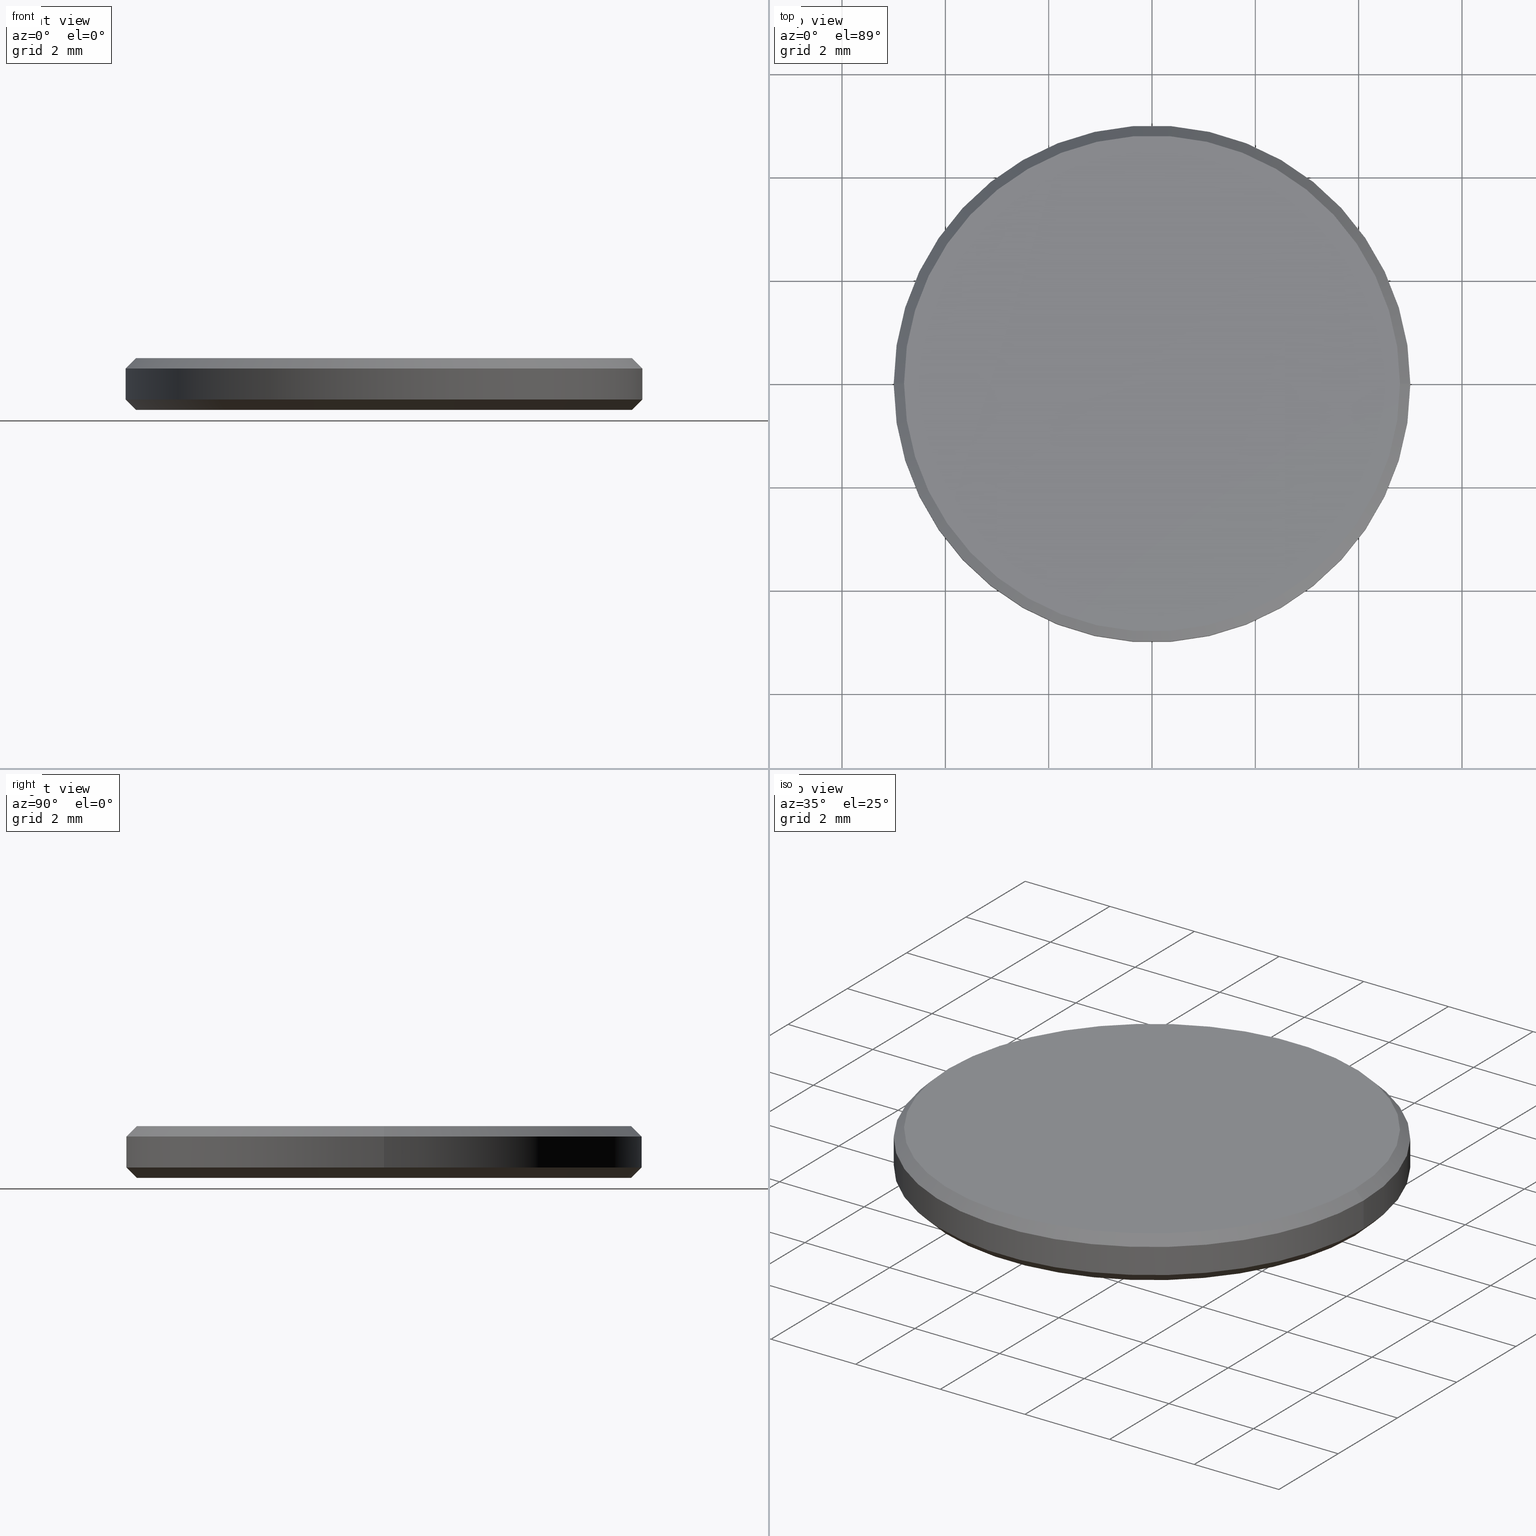
[diagram: canonical four-view strip — front | top / right | iso, engineering-drawing reading convention]
A machine part, canonical four-view strip (front | top / right | iso — engineering-drawing reading convention). The complete STEP part file that produces these views, byte-faithful:
ISO-10303-21;
HEADER;
FILE_DESCRIPTION (( 'STEP AP214' ),
    '1' );
FILE_NAME ('GNIF-320-7360-D10.STEP',
    '2024-07-19T14:46:29',
    ( '' ),
    ( '' ),
    'SwSTEP 2.0',
    'SolidWorks 2022',
    '' );
FILE_SCHEMA (( 'AUTOMOTIVE_DESIGN' ));
ENDSEC;

DATA;
#1 = FACE_OUTER_BOUND ( 'NONE', #208, .T. ) ;
#2 = DIRECTION ( 'NONE',  ( 0.000000000000000000, 0.000000000000000000, -1.000000000000000000 ) ) ;
#3 = FACE_OUTER_BOUND ( 'NONE', #76, .T. ) ;
#4 = AXIS2_PLACEMENT_3D ( 'NONE', #57, #190, #123 ) ;
#5 = APPLICATION_PROTOCOL_DEFINITION ( 'draft international standard', 'automotive_design', 1998, #34 ) ;
#6 = CIRCLE ( 'NONE', #172, 4.799999999999999822 ) ;
#7 = EDGE_LOOP ( 'NONE', ( #109, #98, #71, #81 ) ) ;
#8 = FILL_AREA_STYLE_COLOUR ( '', #68 ) ;
#9 = ADVANCED_FACE ( 'NONE', ( #228 ), #136, .T. ) ;
#10 = DIRECTION ( 'NONE',  ( -0.000000000000000000, -0.000000000000000000, 1.000000000000000000 ) ) ;
#11 = UNCERTAINTY_MEASURE_WITH_UNIT (LENGTH_MEASURE( 1.000000000000000082E-05 ), #157, 'distance_accuracy_value', 'NONE');
#12 = DIRECTION ( 'NONE',  ( 1.000000000000000000, 0.000000000000000000, 0.000000000000000000 ) ) ;
#13 = DIRECTION ( 'NONE',  ( 0.7071067811865490160, 0.000000000000000000, 0.7071067811865459074 ) ) ;
#14 = APPLICATION_CONTEXT ( 'automotive_design' ) ;
#15 = LINE ( 'NONE', #90, #89 ) ;
#16 = PRODUCT_DEFINITION_FORMATION_WITH_SPECIFIED_SOURCE ( '�κ�', '', #163, .NOT_KNOWN. ) ;
#17 = EDGE_CURVE ( 'NONE', #92, #43, #162, .T. ) ;
#18 =( GEOMETRIC_REPRESENTATION_CONTEXT ( 3 ) GLOBAL_UNCERTAINTY_ASSIGNED_CONTEXT ( ( #33 ) ) GLOBAL_UNIT_ASSIGNED_CONTEXT ( ( #132, #100, #223 ) ) REPRESENTATION_CONTEXT ( 'NONE', 'WORKASPACE' ) );
#19 = ORIENTED_EDGE ( 'NONE', *, *, #73, .F. ) ;
#20 = AXIS2_PLACEMENT_3D ( 'NONE', #196, #199, #230 ) ;
#21 = CYLINDRICAL_SURFACE ( 'NONE', #79, 5.000000000000000000 ) ;
#22 = FILL_AREA_STYLE ('',( #8 ) ) ;
#23 = EDGE_LOOP ( 'NONE', ( #160, #169, #96, #62 ) ) ;
#24 = DIRECTION ( 'NONE',  ( 1.000000000000000000, 0.000000000000000000, 0.000000000000000000 ) ) ;
#25 = EDGE_LOOP ( 'NONE', ( #150, #193, #226, #40 ) ) ;
#26 = CARTESIAN_POINT ( 'NONE',  ( 0.000000000000000000, 0.000000000000000000, 0.000000000000000000 ) ) ;
#27 = ADVANCED_FACE ( 'NONE', ( #1 ), #176, .T. ) ;
#28 = AXIS2_PLACEMENT_3D ( 'NONE', #152, #227, #58 ) ;
#29 = DIRECTION ( 'NONE',  ( -0.000000000000000000, -0.000000000000000000, 1.000000000000000000 ) ) ;
#30 = DIRECTION ( 'NONE',  ( 0.000000000000000000, 0.000000000000000000, -1.000000000000000000 ) ) ;
#31 = AXIS2_PLACEMENT_3D ( 'NONE', #175, #10, #229 ) ;
#32 = PLANE ( 'NONE',  #20 ) ;
#33 = UNCERTAINTY_MEASURE_WITH_UNIT (LENGTH_MEASURE( 1.000000000000000082E-05 ), #132, 'distance_accuracy_value', 'NONE');
#34 = APPLICATION_CONTEXT ( 'automotive_design' ) ;
#35 = PRESENTATION_STYLE_ASSIGNMENT (( #216 ) ) ;
#36 = DIRECTION ( 'NONE',  ( -0.7071067811865490160, 8.659560562354950115E-17, 0.7071067811865459074 ) ) ;
#37 = CIRCLE ( 'NONE', #45, 4.800000000000002487 ) ;
#38 = ORIENTED_EDGE ( 'NONE', *, *, #39, .F. ) ;
#39 = EDGE_CURVE ( 'NONE', #91, #151, #164, .T. ) ;
#40 = ORIENTED_EDGE ( 'NONE', *, *, #181, .F. ) ;
#41 = SURFACE_SIDE_STYLE ('',( #173 ) ) ;
#42 = EDGE_CURVE ( 'NONE', #43, #92, #72, .T. ) ;
#43 = VERTEX_POINT ( 'NONE', #48 ) ;
#44 = DIRECTION ( 'NONE',  ( -0.000000000000000000, -0.000000000000000000, -1.000000000000000000 ) ) ;
#45 = AXIS2_PLACEMENT_3D ( 'NONE', #121, #124, #46 ) ;
#46 = DIRECTION ( 'NONE',  ( 1.000000000000000000, 0.000000000000000000, 0.000000000000000000 ) ) ;
#47 = DIRECTION ( 'NONE',  ( -0.000000000000000000, -0.000000000000000000, 1.000000000000000000 ) ) ;
#48 = CARTESIAN_POINT ( 'NONE',  ( -5.000000000000000000, 0.000000000000000000, 0.1999999999999996503 ) ) ;
#49 = AXIS2_PLACEMENT_3D ( 'NONE', #213, #120, #179 ) ;
#50 = DIRECTION ( 'NONE',  ( 0.7071067811865460184, 8.659560562354913137E-17, -0.7071067811865489050 ) ) ;
#51 = CARTESIAN_POINT ( 'NONE',  ( 5.000000000000000000, 0.000000000000000000, 0.1999999999999996503 ) ) ;
#52 = ADVANCED_FACE ( 'NONE', ( #88 ), #144, .T. ) ;
#53 = EDGE_LOOP ( 'NONE', ( #202, #99 ) ) ;
#54 = PRESENTATION_LAYER_ASSIGNMENT (  '', '', ( #158 ) ) ;
#55 = ADVANCED_FACE ( 'NONE', ( #236 ), #235, .T. ) ;
#56 = SURFACE_STYLE_USAGE ( .BOTH. , #41 ) ;
#57 = CARTESIAN_POINT ( 'NONE',  ( 0.000000000000000000, 0.000000000000000000, 0.1999999999999996503 ) ) ;
#58 = DIRECTION ( 'NONE',  ( 1.000000000000000000, 0.000000000000000000, -0.000000000000000000 ) ) ;
#59 = CIRCLE ( 'NONE', #74, 5.000000000000000000 ) ;
#60 = DIRECTION ( 'NONE',  ( -0.000000000000000000, -0.000000000000000000, -1.000000000000000000 ) ) ;
#61 = ADVANCED_BREP_SHAPE_REPRESENTATION ( 'GNIF-320-7360-D10', ( #184, #221 ), #18 ) ;
#62 = ORIENTED_EDGE ( 'NONE', *, *, #204, .F. ) ;
#63 = ORIENTED_EDGE ( 'NONE', *, *, #220, .F. ) ;
#64 = LINE ( 'NONE', #51, #128 ) ;
#65 = LINE ( 'NONE', #104, #178 ) ;
#66 = FILL_AREA_STYLE_COLOUR ( '', #207 ) ;
#67 = CARTESIAN_POINT ( 'NONE',  ( 0.000000000000000000, 0.000000000000000000, 0.000000000000000000 ) ) ;
#68 = COLOUR_RGB ( '',1.000000000000000000, 1.000000000000000000, 1.000000000000000000 ) ;
#69 =( NAMED_UNIT ( * ) PLANE_ANGLE_UNIT ( ) SI_UNIT ( $, .RADIAN. ) );
#70 = AXIS2_PLACEMENT_3D ( 'NONE', #106, #30, #85 ) ;
#71 = ORIENTED_EDGE ( 'NONE', *, *, #17, .F. ) ;
#72 = CIRCLE ( 'NONE', #4, 5.000000000000000000 ) ;
#73 = EDGE_CURVE ( 'NONE', #189, #115, #37, .T. ) ;
#74 = AXIS2_PLACEMENT_3D ( 'NONE', #180, #137, #142 ) ;
#75 = DIRECTION ( 'NONE',  ( -1.000000000000000000, 0.000000000000000000, 0.000000000000000000 ) ) ;
#76 = EDGE_LOOP ( 'NONE', ( #127, #134 ) ) ;
#77 = PLANE ( 'NONE',  #28 ) ;
#78 = EDGE_CURVE ( 'NONE', #113, #92, #64, .T. ) ;
#79 = AXIS2_PLACEMENT_3D ( 'NONE', #168, #210, #97 ) ;
#80 = SHAPE_DEFINITION_REPRESENTATION ( #114, #61 ) ;
#81 = ORIENTED_EDGE ( 'NONE', *, *, #78, .F. ) ;
#82 = PRESENTATION_STYLE_ASSIGNMENT (( #56 ) ) ;
#83 = DIRECTION ( 'NONE',  ( 1.000000000000000000, 0.000000000000000000, 0.000000000000000000 ) ) ;
#84 = EDGE_CURVE ( 'NONE', #91, #92, #201, .T. ) ;
#85 = DIRECTION ( 'NONE',  ( -1.000000000000000000, 0.000000000000000000, 0.000000000000000000 ) ) ;
#86 = CARTESIAN_POINT ( 'NONE',  ( 0.000000000000000000, 0.000000000000000000, 0.1999999999999996503 ) ) ;
#87 = SURFACE_STYLE_FILL_AREA ( #231 ) ;
#88 = FACE_OUTER_BOUND ( 'NONE', #186, .T. ) ;
#89 = VECTOR ( 'NONE', #159, 1000.000000000000114 ) ;
#90 = CARTESIAN_POINT ( 'NONE',  ( -4.800000000000002487, 0.000000000000000000, 1.000000000000000000 ) ) ;
#91 = VERTEX_POINT ( 'NONE', #103 ) ;
#92 = VERTEX_POINT ( 'NONE', #156 ) ;
#93 = CONICAL_SURFACE ( 'NONE', #70, 4.800000000000002487, 0.7853981633974461696 ) ;
#94 = PRODUCT_CONTEXT ( 'NONE', #34, 'mechanical' ) ;
#95 = PRESENTATION_LAYER_ASSIGNMENT (  '', '', ( #183 ) ) ;
#96 = ORIENTED_EDGE ( 'NONE', *, *, #112, .F. ) ;
#97 = DIRECTION ( 'NONE',  ( -1.000000000000000000, 0.000000000000000000, 0.000000000000000000 ) ) ;
#98 = ORIENTED_EDGE ( 'NONE', *, *, #110, .T. ) ;
#99 = ORIENTED_EDGE ( 'NONE', *, *, #107, .T. ) ;
#100 =( NAMED_UNIT ( * ) PLANE_ANGLE_UNIT ( ) SI_UNIT ( $, .RADIAN. ) );
#101 = DIRECTION ( 'NONE',  ( 1.000000000000000000, 0.000000000000000000, 0.000000000000000000 ) ) ;
#102 = ADVANCED_FACE ( 'NONE', ( #153 ), #32, .F. ) ;
#103 = CARTESIAN_POINT ( 'NONE',  ( 5.000000000000000000, 6.123233995736766282E-16, 0.8000000000000012657 ) ) ;
#104 = CARTESIAN_POINT ( 'NONE',  ( -5.000000000000000000, 6.123233995736765296E-16, 0.1999999999999996503 ) ) ;
#105 = PRODUCT_DEFINITION_CONTEXT ( 'detailed design', #14, 'design' ) ;
#106 = CARTESIAN_POINT ( 'NONE',  ( 0.000000000000000000, 0.000000000000000000, 1.000000000000000000 ) ) ;
#107 = EDGE_CURVE ( 'NONE', #145, #113, #6, .T. ) ;
#108 =( NAMED_UNIT ( * ) SI_UNIT ( $, .STERADIAN. ) SOLID_ANGLE_UNIT ( ) );
#109 = ORIENTED_EDGE ( 'NONE', *, *, #107, .F. ) ;
#110 = EDGE_CURVE ( 'NONE', #145, #43, #65, .T. ) ;
#111 = ORIENTED_EDGE ( 'NONE', *, *, #42, .T. ) ;
#112 = EDGE_CURVE ( 'NONE', #151, #91, #59, .T. ) ;
#113 = VERTEX_POINT ( 'NONE', #217 ) ;
#114 = PRODUCT_DEFINITION_SHAPE ( 'NONE', 'NONE',  #240 ) ;
#115 = VERTEX_POINT ( 'NONE', #214 ) ;
#116 = DIRECTION ( 'NONE',  ( -1.000000000000000000, 0.000000000000000000, 0.000000000000000000 ) ) ;
#117 =( LENGTH_UNIT ( ) NAMED_UNIT ( * ) SI_UNIT ( .MILLI., .METRE. ) );
#118 = ADVANCED_FACE ( 'NONE', ( #211 ), #93, .T. ) ;
#119 = DIRECTION ( 'NONE',  ( -0.000000000000000000, -0.000000000000000000, -1.000000000000000000 ) ) ;
#120 = DIRECTION ( 'NONE',  ( 0.000000000000000000, 0.000000000000000000, 1.000000000000000000 ) ) ;
#121 = CARTESIAN_POINT ( 'NONE',  ( 0.000000000000000000, 0.000000000000000000, 1.000000000000000000 ) ) ;
#122 = VECTOR ( 'NONE', #155, 1000.000000000000000 ) ;
#123 = DIRECTION ( 'NONE',  ( 1.000000000000000000, 0.000000000000000000, 0.000000000000000000 ) ) ;
#124 = DIRECTION ( 'NONE',  ( 0.000000000000000000, 0.000000000000000000, 1.000000000000000000 ) ) ;
#125 = VECTOR ( 'NONE', #119, 1000.000000000000000 ) ;
#126 = ORIENTED_EDGE ( 'NONE', *, *, #204, .T. ) ;
#127 = ORIENTED_EDGE ( 'NONE', *, *, #73, .T. ) ;
#128 = VECTOR ( 'NONE', #13, 1000.000000000000000 ) ;
#129 = ORIENTED_EDGE ( 'NONE', *, *, #170, .F. ) ;
#130 = DIRECTION ( 'NONE',  ( 0.000000000000000000, 0.000000000000000000, 1.000000000000000000 ) ) ;
#131 = ORIENTED_EDGE ( 'NONE', *, *, #39, .T. ) ;
#132 =( LENGTH_UNIT ( ) NAMED_UNIT ( * ) SI_UNIT ( .MILLI., .METRE. ) );
#133 = DIRECTION ( 'NONE',  ( 1.000000000000000000, 0.000000000000000000, 0.000000000000000000 ) ) ;
#134 = ORIENTED_EDGE ( 'NONE', *, *, #166, .T. ) ;
#135 = CARTESIAN_POINT ( 'NONE',  ( 0.000000000000000000, 0.000000000000000000, 0.000000000000000000 ) ) ;
#136 = CYLINDRICAL_SURFACE ( 'NONE', #233, 5.000000000000000000 ) ;
#137 = DIRECTION ( 'NONE',  ( 0.000000000000000000, 0.000000000000000000, -1.000000000000000000 ) ) ;
#138 = MECHANICAL_DESIGN_GEOMETRIC_PRESENTATION_REPRESENTATION (  '', ( #183 ), #187 ) ;
#139 = CARTESIAN_POINT ( 'NONE',  ( -5.000000000000000000, 0.000000000000000000, 0.8000000000000012657 ) ) ;
#140 = CARTESIAN_POINT ( 'NONE',  ( 5.000000000000000000, 6.123233995736766282E-16, 1.000000000000000000 ) ) ;
#141 = SURFACE_SIDE_STYLE ('',( #87 ) ) ;
#142 = DIRECTION ( 'NONE',  ( 1.000000000000000000, 0.000000000000000000, 0.000000000000000000 ) ) ;
#143 = AXIS2_PLACEMENT_3D ( 'NONE', #224, #29, #101 ) ;
#144 = CONICAL_SURFACE ( 'NONE', #31, 5.000000000000000000, 0.7853981633974503884 ) ;
#145 = VERTEX_POINT ( 'NONE', #154 ) ;
#146 = AXIS2_PLACEMENT_3D ( 'NONE', #86, #47, #83 ) ;
#147 = DIRECTION ( 'NONE',  ( 0.000000000000000000, 0.000000000000000000, -1.000000000000000000 ) ) ;
#148 = DIRECTION ( 'NONE',  ( 1.000000000000000000, 0.000000000000000000, 0.000000000000000000 ) ) ;
#149 = CIRCLE ( 'NONE', #49, 4.800000000000002487 ) ;
#150 = ORIENTED_EDGE ( 'NONE', *, *, #112, .T. ) ;
#151 = VERTEX_POINT ( 'NONE', #139 ) ;
#152 = CARTESIAN_POINT ( 'NONE',  ( 0.000000000000000000, 0.000000000000000000, 1.000000000000000000 ) ) ;
#153 = FACE_OUTER_BOUND ( 'NONE', #53, .T. ) ;
#154 = CARTESIAN_POINT ( 'NONE',  ( -4.799999999999999822, 6.000769315822029754E-16, 0.000000000000000000 ) ) ;
#155 = DIRECTION ( 'NONE',  ( -0.000000000000000000, -0.000000000000000000, -1.000000000000000000 ) ) ;
#156 = CARTESIAN_POINT ( 'NONE',  ( 5.000000000000000000, 6.123233995736766282E-16, 0.1999999999999996503 ) ) ;
#157 =( LENGTH_UNIT ( ) NAMED_UNIT ( * ) SI_UNIT ( .MILLI., .METRE. ) );
#158 = STYLED_ITEM ( 'NONE', ( #82 ), #61 ) ;
#159 = DIRECTION ( 'NONE',  ( -0.7071067811865460184, 0.000000000000000000, -0.7071067811865489050 ) ) ;
#160 = ORIENTED_EDGE ( 'NONE', *, *, #166, .F. ) ;
#161 = ORIENTED_EDGE ( 'NONE', *, *, #78, .T. ) ;
#162 = CIRCLE ( 'NONE', #143, 5.000000000000000000 ) ;
#163 = PRODUCT ( 'GNIF-320-7360-D10', 'GNIF-320-7360-D10', '', ( #94 ) ) ;
#164 = CIRCLE ( 'NONE', #237, 5.000000000000000000 ) ;
#165 = MECHANICAL_DESIGN_GEOMETRIC_PRESENTATION_REPRESENTATION (  '', ( #158 ), #225 ) ;
#166 = EDGE_CURVE ( 'NONE', #115, #189, #149, .T. ) ;
#167 = CARTESIAN_POINT ( 'NONE',  ( 0.000000000000000000, 0.000000000000000000, 1.000000000000000000 ) ) ;
#168 = CARTESIAN_POINT ( 'NONE',  ( 0.000000000000000000, 0.000000000000000000, 1.000000000000000000 ) ) ;
#169 = ORIENTED_EDGE ( 'NONE', *, *, #170, .T. ) ;
#170 = EDGE_CURVE ( 'NONE', #115, #91, #234, .T. ) ;
#171 = AXIS2_PLACEMENT_3D ( 'NONE', #167, #147, #75 ) ;
#172 = AXIS2_PLACEMENT_3D ( 'NONE', #67, #200, #12 ) ;
#173 = SURFACE_STYLE_FILL_AREA ( #22 ) ;
#174 = CARTESIAN_POINT ( 'NONE',  ( 4.800000000000002487, 5.878304635907297169E-16, 1.000000000000000000 ) ) ;
#175 = CARTESIAN_POINT ( 'NONE',  ( 0.000000000000000000, 0.000000000000000000, 0.1999999999999996503 ) ) ;
#176 = CONICAL_SURFACE ( 'NONE', #171, 4.800000000000002487, 0.7853981633974461696 ) ;
#177 = CARTESIAN_POINT ( 'NONE',  ( -5.000000000000000000, 0.000000000000000000, 1.000000000000000000 ) ) ;
#178 = VECTOR ( 'NONE', #36, 1000.000000000000000 ) ;
#179 = DIRECTION ( 'NONE',  ( 1.000000000000000000, 0.000000000000000000, 0.000000000000000000 ) ) ;
#180 = CARTESIAN_POINT ( 'NONE',  ( 0.000000000000000000, 0.000000000000000000, 0.8000000000000012657 ) ) ;
#181 = EDGE_CURVE ( 'NONE', #151, #43, #197, .T. ) ;
#182 = CARTESIAN_POINT ( 'NONE',  ( -4.800000000000002487, 0.000000000000000000, 1.000000000000000000 ) ) ;
#183 = STYLED_ITEM ( 'NONE', ( #35 ), #184 ) ;
#184 = MANIFOLD_SOLID_BREP ( '����1', #239 ) ;
#185 = ORIENTED_EDGE ( 'NONE', *, *, #181, .T. ) ;
#186 = EDGE_LOOP ( 'NONE', ( #218, #63, #161, #219 ) ) ;
#187 =( GEOMETRIC_REPRESENTATION_CONTEXT ( 3 ) GLOBAL_UNCERTAINTY_ASSIGNED_CONTEXT ( ( #11 ) ) GLOBAL_UNIT_ASSIGNED_CONTEXT ( ( #157, #69, #108 ) ) REPRESENTATION_CONTEXT ( 'NONE', 'WORKASPACE' ) );
#188 = VECTOR ( 'NONE', #50, 1000.000000000000114 ) ;
#189 = VERTEX_POINT ( 'NONE', #182 ) ;
#190 = DIRECTION ( 'NONE',  ( -0.000000000000000000, -0.000000000000000000, 1.000000000000000000 ) ) ;
#191 = PRODUCT_RELATED_PRODUCT_CATEGORY ( 'part', '', ( #163 ) ) ;
#192 =( NAMED_UNIT ( * ) SI_UNIT ( $, .STERADIAN. ) SOLID_ANGLE_UNIT ( ) );
#193 = ORIENTED_EDGE ( 'NONE', *, *, #84, .T. ) ;
#194 =( NAMED_UNIT ( * ) PLANE_ANGLE_UNIT ( ) SI_UNIT ( $, .RADIAN. ) );
#195 = EDGE_LOOP ( 'NONE', ( #206, #131, #185, #111 ) ) ;
#196 = CARTESIAN_POINT ( 'NONE',  ( 0.000000000000000000, 0.000000000000000000, 0.000000000000000000 ) ) ;
#197 = LINE ( 'NONE', #177, #122 ) ;
#198 = UNCERTAINTY_MEASURE_WITH_UNIT (LENGTH_MEASURE( 1.000000000000000082E-05 ), #117, 'distance_accuracy_value', 'NONE');
#199 = DIRECTION ( 'NONE',  ( 0.000000000000000000, 0.000000000000000000, 1.000000000000000000 ) ) ;
#200 = DIRECTION ( 'NONE',  ( -0.000000000000000000, -0.000000000000000000, -1.000000000000000000 ) ) ;
#201 = LINE ( 'NONE', #140, #125 ) ;
#202 = ORIENTED_EDGE ( 'NONE', *, *, #220, .T. ) ;
#203 = CIRCLE ( 'NONE', #215, 4.799999999999999822 ) ;
#204 = EDGE_CURVE ( 'NONE', #189, #151, #15, .T. ) ;
#205 = APPLICATION_PROTOCOL_DEFINITION ( 'draft international standard', 'automotive_design', 1998, #14 ) ;
#206 = ORIENTED_EDGE ( 'NONE', *, *, #84, .F. ) ;
#207 = COLOUR_RGB ( '',1.000000000000000000, 1.000000000000000000, 1.000000000000000000 ) ;
#208 = EDGE_LOOP ( 'NONE', ( #129, #19, #126, #38 ) ) ;
#209 = CARTESIAN_POINT ( 'NONE',  ( 0.000000000000000000, 0.000000000000000000, 1.000000000000000000 ) ) ;
#210 = DIRECTION ( 'NONE',  ( -0.000000000000000000, -0.000000000000000000, -1.000000000000000000 ) ) ;
#211 = FACE_OUTER_BOUND ( 'NONE', #23, .T. ) ;
#212 = ADVANCED_FACE ( 'NONE', ( #238 ), #21, .T. ) ;
#213 = CARTESIAN_POINT ( 'NONE',  ( 0.000000000000000000, 0.000000000000000000, 1.000000000000000000 ) ) ;
#214 = CARTESIAN_POINT ( 'NONE',  ( 4.800000000000002487, 6.000769315822031726E-16, 1.000000000000000000 ) ) ;
#215 = AXIS2_PLACEMENT_3D ( 'NONE', #135, #60, #133 ) ;
#216 = SURFACE_STYLE_USAGE ( .BOTH. , #141 ) ;
#217 = CARTESIAN_POINT ( 'NONE',  ( 4.799999999999999822, 0.000000000000000000, 0.000000000000000000 ) ) ;
#218 = ORIENTED_EDGE ( 'NONE', *, *, #110, .F. ) ;
#219 = ORIENTED_EDGE ( 'NONE', *, *, #42, .F. ) ;
#220 = EDGE_CURVE ( 'NONE', #113, #145, #203, .T. ) ;
#221 = AXIS2_PLACEMENT_3D ( 'NONE', #26, #130, #24 ) ;
#222 = CARTESIAN_POINT ( 'NONE',  ( 0.000000000000000000, 0.000000000000000000, 0.8000000000000012657 ) ) ;
#223 =( NAMED_UNIT ( * ) SI_UNIT ( $, .STERADIAN. ) SOLID_ANGLE_UNIT ( ) );
#224 = CARTESIAN_POINT ( 'NONE',  ( 0.000000000000000000, 0.000000000000000000, 0.1999999999999996503 ) ) ;
#225 =( GEOMETRIC_REPRESENTATION_CONTEXT ( 3 ) GLOBAL_UNCERTAINTY_ASSIGNED_CONTEXT ( ( #198 ) ) GLOBAL_UNIT_ASSIGNED_CONTEXT ( ( #117, #194, #192 ) ) REPRESENTATION_CONTEXT ( 'NONE', 'WORKASPACE' ) );
#226 = ORIENTED_EDGE ( 'NONE', *, *, #17, .T. ) ;
#227 = DIRECTION ( 'NONE',  ( 0.000000000000000000, 0.000000000000000000, 1.000000000000000000 ) ) ;
#228 = FACE_OUTER_BOUND ( 'NONE', #25, .T. ) ;
#229 = DIRECTION ( 'NONE',  ( 1.000000000000000000, 0.000000000000000000, 0.000000000000000000 ) ) ;
#230 = DIRECTION ( 'NONE',  ( 1.000000000000000000, 0.000000000000000000, -0.000000000000000000 ) ) ;
#231 = FILL_AREA_STYLE ('',( #66 ) ) ;
#232 = ADVANCED_FACE ( 'NONE', ( #3 ), #77, .T. ) ;
#233 = AXIS2_PLACEMENT_3D ( 'NONE', #209, #44, #116 ) ;
#234 = LINE ( 'NONE', #174, #188 ) ;
#235 = CONICAL_SURFACE ( 'NONE', #146, 5.000000000000000000, 0.7853981633974503884 ) ;
#236 = FACE_OUTER_BOUND ( 'NONE', #7, .T. ) ;
#237 = AXIS2_PLACEMENT_3D ( 'NONE', #222, #2, #148 ) ;
#238 = FACE_OUTER_BOUND ( 'NONE', #195, .T. ) ;
#239 = CLOSED_SHELL ( 'NONE', ( #55, #118, #9, #212, #232, #102, #27, #52 ) ) ;
#240 = PRODUCT_DEFINITION ( 'δ֪', '', #16, #105 ) ;
ENDSEC;
END-ISO-10303-21;
